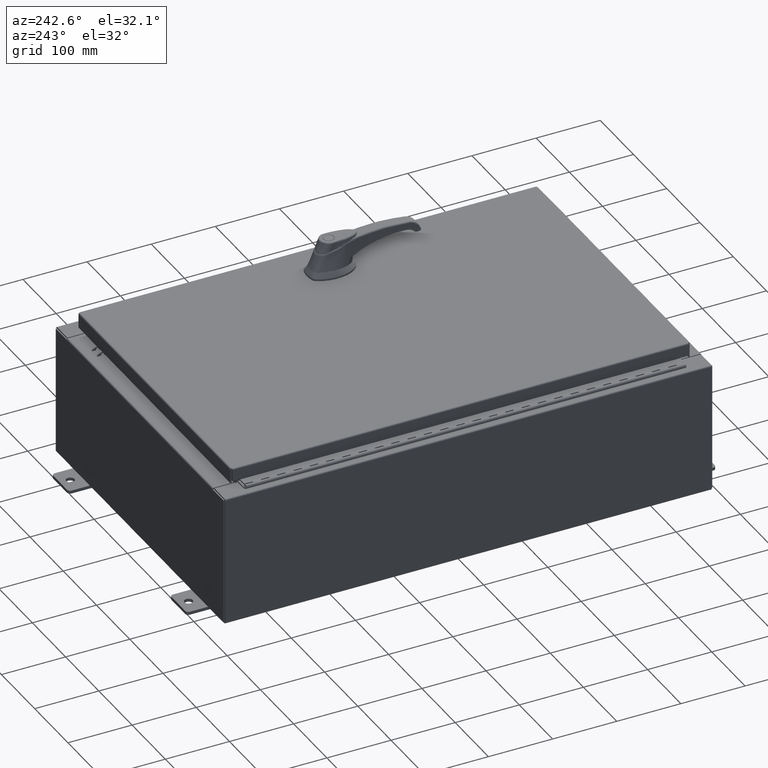
[diagram: clean part render]
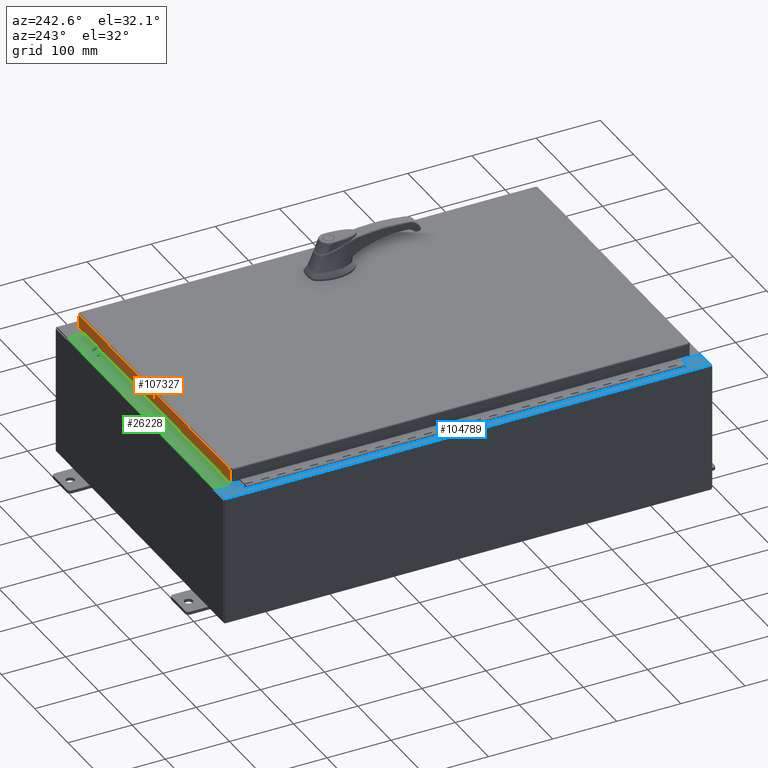
[diagram: same view with three faces highlighted in distinct colors, each labeled with its STEP entity id]
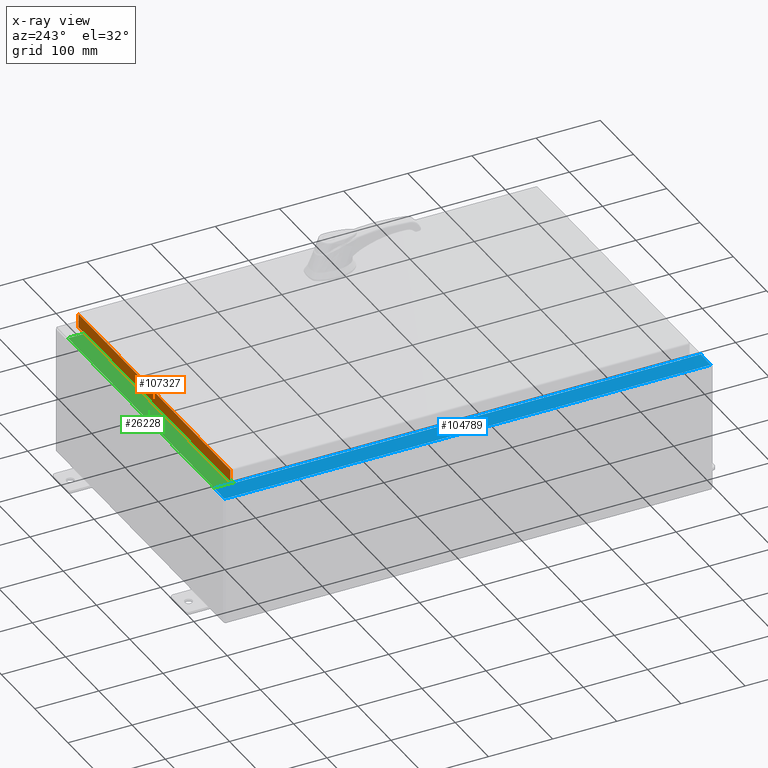
[diagram: x-ray of the same camera — body ghosted, the three highlighted faces saturated]
A machine part, auxiliary view with three faces highlighted in distinct colors.
The next image is the same camera in x-ray (body ghosted, the three faces saturated) — at least one of them is partly hidden behind the body in this view.
Their STEP definitions:

[orange] entity #107327 — the highlighted planar face has unit normal (0, -1, -0).
#2732 = ORIENTED_EDGE ( 'NONE', *, *, #77129, .F. ) ;
#7424 = EDGE_CURVE ( 'NONE', #31499, #17379, #8457, .T. ) ;
#8457 = LINE ( 'NONE', #72655, #101928 ) ;
#10259 = VECTOR ( 'NONE', #30236, 39.37007874015748100 ) ;
#16980 = EDGE_LOOP ( 'NONE', ( #93947, #24734, #2732, #106824 ) ) ;
#17379 = VERTEX_POINT ( 'NONE', #41022 ) ;
#20155 = CARTESIAN_POINT ( 'NONE',  ( -9.077999999999997600, 14.09400000000000100, -0.9377000000000020900 ) ) ;
#24638 = PLANE ( 'NONE',  #82992 ) ;
#24734 = ORIENTED_EDGE ( 'NONE', *, *, #64616, .T. ) ;
#30236 = DIRECTION ( 'NONE',  ( 0.0000000000000000000, 2.532419924601859400E-015, -1.000000000000000000 ) ) ;
#31499 = VERTEX_POINT ( 'NONE', #110300 ) ;
#33115 = LINE ( 'NONE', #57710, #108078 ) ;
#33722 = DIRECTION ( 'NONE',  ( 3.238851259428368500E-031, -1.000000000000000000, -2.532419924601859400E-015 ) ) ;
#34686 = FACE_OUTER_BOUND ( 'NONE', #16980, .T. ) ;
#41022 = CARTESIAN_POINT ( 'NONE',  ( -8.989157864376267100, 14.09399999999999900, -0.08770000000000008300 ) ) ;
#54957 = CARTESIAN_POINT ( 'NONE',  ( 8.989157864376268800, 14.09400000000000100, -0.9376999999999997600 ) ) ;
#57710 = CARTESIAN_POINT ( 'NONE',  ( -8.989157864376267100, 14.09399999999999900, -0.07469999999999980800 ) ) ;
#58412 = LINE ( 'NONE', #84411, #10259 ) ;
#63238 = EDGE_CURVE ( 'NONE', #17379, #89874, #33115, .T. ) ;
#64616 = EDGE_CURVE ( 'NONE', #31499, #94293, #58412, .T. ) ;
#66811 = DIRECTION ( 'NONE',  ( -0.0000000000000000000, 2.532419924601859400E-015, -1.000000000000000000 ) ) ;
#72655 = CARTESIAN_POINT ( 'NONE',  ( -9.077999999999997600, 14.09399999999999900, -0.08770000000000008300 ) ) ;
#77129 = EDGE_CURVE ( 'NONE', #89874, #94293, #112514, .T. ) ;
#82992 = AXIS2_PLACEMENT_3D ( 'NONE', #105672, #33722, #96972 ) ;
#83431 = DIRECTION ( 'NONE',  ( 1.000000000000000000, -4.379057701015054300E-047, 1.278955053213606700E-016 ) ) ;
#84411 = CARTESIAN_POINT ( 'NONE',  ( 8.989157864376268800, 14.09399999999999900, 3.595274007335018000E-014 ) ) ;
#89874 = VERTEX_POINT ( 'NONE', #114200 ) ;
#90794 = DIRECTION ( 'NONE',  ( -1.000000000000000000, -3.238851259428369400E-031, -8.109186372806501700E-046 ) ) ;
#93947 = ORIENTED_EDGE ( 'NONE', *, *, #7424, .F. ) ;
#94293 = VERTEX_POINT ( 'NONE', #54957 ) ;
#96972 = DIRECTION ( 'NONE',  ( 0.0000000000000000000, 2.532419924601859400E-015, -1.000000000000000000 ) ) ;
#101928 = VECTOR ( 'NONE', #90794, 39.37007874015748100 ) ;
#105672 = CARTESIAN_POINT ( 'NONE',  ( -4.564836965038341900E-030, 14.09399999999999900, 3.595274007335018000E-014 ) ) ;
#106824 = ORIENTED_EDGE ( 'NONE', *, *, #63238, .F. ) ;
#107327 = ADVANCED_FACE ( 'NONE', ( #34686 ), #24638, .F. ) ;
#108078 = VECTOR ( 'NONE', #66811, 39.37007874015748100 ) ;
#110300 = CARTESIAN_POINT ( 'NONE',  ( 8.989157864376268800, 14.09399999999999900, -0.08770000000000008300 ) ) ;
#112514 = LINE ( 'NONE', #20155, #115344 ) ;
#114200 = CARTESIAN_POINT ( 'NONE',  ( -8.989157864376267100, 14.09400000000000100, -0.9377000000000020900 ) ) ;
#115344 = VECTOR ( 'NONE', #83431, 39.37007874015748100 ) ;

[blue] entity #104789 — the highlighted planar face has unit normal (0, 0, -1).
#1156 = LINE ( 'NONE', #43386, #43651 ) ;
#1472 = DIRECTION ( 'NONE',  ( -1.000000000000000000, 0.0000000000000000000, -7.132762385546378400E-015 ) ) ;
#1663 = LINE ( 'NONE', #50376, #44136 ) ;
#3653 = DIRECTION ( 'NONE',  ( 0.0000000000000000000, 1.000000000000000000, 0.0000000000000000000 ) ) ;
#3958 = DIRECTION ( 'NONE',  ( -0.0000000000000000000, -1.000000000000000000, -0.0000000000000000000 ) ) ;
#6380 = EDGE_CURVE ( 'NONE', #49600, #39972, #1156, .T. ) ;
#10534 = ORIENTED_EDGE ( 'NONE', *, *, #100668, .F. ) ;
#12300 = ORIENTED_EDGE ( 'NONE', *, *, #43856, .T. ) ;
#15331 = ORIENTED_EDGE ( 'NONE', *, *, #69017, .F. ) ;
#15619 = VERTEX_POINT ( 'NONE', #112132 ) ;
#16451 = DIRECTION ( 'NONE',  ( -0.0000000000000000000, 1.000000000000000000, -0.0000000000000000000 ) ) ;
#17339 = DIRECTION ( 'NONE',  ( -7.132762385546378400E-015, -0.0000000000000000000, 1.000000000000000000 ) ) ;
#17437 = VECTOR ( 'NONE', #52254, 39.37007874015748100 ) ;
#18443 = DIRECTION ( 'NONE',  ( 1.000000000000000000, 0.0000000000000000000, 0.0000000000000000000 ) ) ;
#18994 = VERTEX_POINT ( 'NONE', #110110 ) ;
#20015 = CARTESIAN_POINT ( 'NONE',  ( -8.712700000000030100, 13.59375000000000200, 7.925300000000008900 ) ) ;
#20472 = EDGE_CURVE ( 'NONE', #72363, #117034, #30245, .T. ) ;
#21568 = LINE ( 'NONE', #75100, #66863 ) ;
#22153 = CARTESIAN_POINT ( 'NONE',  ( -5.679009539018279500E-014, -14.92529999999999600, 7.925300000000071100 ) ) ;
#24485 = AXIS2_PLACEMENT_3D ( 'NONE', #71549, #17339, #80637 ) ;
#25315 = LINE ( 'NONE', #22153, #70586 ) ;
#27621 = EDGE_CURVE ( 'NONE', #114365, #28814, #33565, .T. ) ;
#28316 = VERTEX_POINT ( 'NONE', #84365 ) ;
#28814 = VERTEX_POINT ( 'NONE', #20015 ) ;
#30129 = EDGE_LOOP ( 'NONE', ( #15331, #37863, #12300, #98164, #93302, #41097, #98866, #93473, #51866, #53687, #112779, #10534 ) ) ;
#30245 = CIRCLE ( 'NONE', #24485, 0.01867499999999949400 ) ;
#30728 = CARTESIAN_POINT ( 'NONE',  ( -8.750050000000030100, 13.61242500000000200, 7.925300000000008900 ) ) ;
#33565 = LINE ( 'NONE', #63560, #78842 ) ;
#35531 = DIRECTION ( 'NONE',  ( -1.000000000000000000, 0.0000000000000000000, -7.132762385546378400E-015 ) ) ;
#37863 = ORIENTED_EDGE ( 'NONE', *, *, #97763, .T. ) ;
#39801 = DIRECTION ( 'NONE',  ( 1.000000000000000000, 0.0000000000000000000, 0.0000000000000000000 ) ) ;
#39972 = VERTEX_POINT ( 'NONE', #106317 ) ;
#40384 = CARTESIAN_POINT ( 'NONE',  ( -8.712700000000030100, 13.59375000000000400, 7.925300000000008900 ) ) ;
#41097 = ORIENTED_EDGE ( 'NONE', *, *, #112071, .T. ) ;
#42083 = CARTESIAN_POINT ( 'NONE',  ( -8.750050000000030100, 13.59375000000000200, 7.925300000000008900 ) ) ;
#43386 = CARTESIAN_POINT ( 'NONE',  ( -9.912300000000028500, 14.92530000000000500, 7.925300000000000000 ) ) ;
#43651 = VECTOR ( 'NONE', #16451, 39.37007874015748100 ) ;
#43856 = EDGE_CURVE ( 'NONE', #82391, #39972, #50549, .T. ) ;
#44136 = VECTOR ( 'NONE', #50759, 39.37007874015748100 ) ;
#45560 = EDGE_CURVE ( 'NONE', #49600, #18994, #25315, .T. ) ;
#45898 = CARTESIAN_POINT ( 'NONE',  ( -8.750050000000030100, 13.63110000000000200, 7.925300000000008900 ) ) ;
#47412 = CARTESIAN_POINT ( 'NONE',  ( -8.712700000000030100, -13.59374999999999500, 7.925300000000008900 ) ) ;
#49600 = VERTEX_POINT ( 'NONE', #109220 ) ;
#50376 = CARTESIAN_POINT ( 'NONE',  ( -8.699700000000028400, 13.63110000000000400, 7.925300000000008900 ) ) ;
#50549 = LINE ( 'NONE', #54073, #71778 ) ;
#50572 = FACE_OUTER_BOUND ( 'NONE', #30129, .T. ) ;
#50759 = DIRECTION ( 'NONE',  ( -1.000000000000000000, -4.340572780399910900E-014, 0.0000000000000000000 ) ) ;
#51101 = EDGE_CURVE ( 'NONE', #117034, #28316, #89602, .T. ) ;
#51866 = ORIENTED_EDGE ( 'NONE', *, *, #86264, .F. ) ;
#52254 = DIRECTION ( 'NONE',  ( 1.000000000000000000, 0.0000000000000000000, 0.0000000000000000000 ) ) ;
#53687 = ORIENTED_EDGE ( 'NONE', *, *, #69536, .F. ) ;
#54025 = AXIS2_PLACEMENT_3D ( 'NONE', #82598, #55681, #1472 ) ;
#54073 = CARTESIAN_POINT ( 'NONE',  ( -5.679009539018279500E-014, 14.92530000000000500, 7.925300000000071100 ) ) ;
#55681 = DIRECTION ( 'NONE',  ( 7.132762385546378400E-015, 0.0000000000000000000, -1.000000000000000000 ) ) ;
#56513 = DIRECTION ( 'NONE',  ( -1.000000000000000000, 0.0000000000000000000, 0.0000000000000000000 ) ) ;
#61068 = VECTOR ( 'NONE', #3958, 39.37007874015748100 ) ;
#62366 = VECTOR ( 'NONE', #56513, 39.37007874015748100 ) ;
#63560 = CARTESIAN_POINT ( 'NONE',  ( -8.750050000000030100, 13.59375000000000200, 7.925300000000008900 ) ) ;
#63562 = CARTESIAN_POINT ( 'NONE',  ( -8.750050000000030100, -13.63109999999999500, 7.925300000000008900 ) ) ;
#64485 = AXIS2_PLACEMENT_3D ( 'NONE', #30728, #93978, #39801 ) ;
#64851 = VERTEX_POINT ( 'NONE', #71662 ) ;
#66863 = VECTOR ( 'NONE', #84178, 39.37007874015748100 ) ;
#67638 = DIRECTION ( 'NONE',  ( 1.000000000000000000, -0.0000000000000000000, 7.132762385546378400E-015 ) ) ;
#69017 = EDGE_CURVE ( 'NONE', #15619, #109795, #1663, .T. ) ;
#69453 = CIRCLE ( 'NONE', #64485, 0.01867499999999949400 ) ;
#69536 = EDGE_CURVE ( 'NONE', #28814, #64851, #87957, .T. ) ;
#70586 = VECTOR ( 'NONE', #67638, 39.37007874015748100 ) ;
#71549 = CARTESIAN_POINT ( 'NONE',  ( -8.750050000000030100, -13.61242499999999500, 7.925300000000008900 ) ) ;
#71662 = CARTESIAN_POINT ( 'NONE',  ( -8.712700000000030100, -13.59374999999999500, 7.925300000000008900 ) ) ;
#71778 = VECTOR ( 'NONE', #35531, 39.37007874015748100 ) ;
#72363 = VERTEX_POINT ( 'NONE', #72938 ) ;
#72938 = CARTESIAN_POINT ( 'NONE',  ( -8.750050000000030100, -13.59374999999999500, 7.925300000000008900 ) ) ;
#75100 = CARTESIAN_POINT ( 'NONE',  ( -8.699700000000028400, 0.0000000000000000000, 7.925300000000008900 ) ) ;
#78842 = VECTOR ( 'NONE', #18443, 39.37007874015748100 ) ;
#80637 = DIRECTION ( 'NONE',  ( 1.000000000000000000, 0.0000000000000000000, 0.0000000000000000000 ) ) ;
#82391 = VERTEX_POINT ( 'NONE', #102269 ) ;
#82598 = CARTESIAN_POINT ( 'NONE',  ( -5.679009539018279500E-014, 0.0000000000000000000, 7.925300000000071100 ) ) ;
#84178 = DIRECTION ( 'NONE',  ( 0.0000000000000000000, 1.000000000000000000, 0.0000000000000000000 ) ) ;
#84365 = CARTESIAN_POINT ( 'NONE',  ( -8.699700000000028400, -13.63109999999999600, 7.925300000000008900 ) ) ;
#86264 = EDGE_CURVE ( 'NONE', #64851, #72363, #89251, .T. ) ;
#87957 = LINE ( 'NONE', #40384, #61068 ) ;
#89251 = LINE ( 'NONE', #47412, #62366 ) ;
#89573 = VECTOR ( 'NONE', #3653, 39.37007874015748100 ) ;
#89602 = LINE ( 'NONE', #115548, #17437 ) ;
#93302 = ORIENTED_EDGE ( 'NONE', *, *, #45560, .T. ) ;
#93473 = ORIENTED_EDGE ( 'NONE', *, *, #20472, .F. ) ;
#93978 = DIRECTION ( 'NONE',  ( -7.132762385546378400E-015, -0.0000000000000000000, 1.000000000000000000 ) ) ;
#97763 = EDGE_CURVE ( 'NONE', #15619, #82391, #113693, .T. ) ;
#98164 = ORIENTED_EDGE ( 'NONE', *, *, #6380, .F. ) ;
#98866 = ORIENTED_EDGE ( 'NONE', *, *, #51101, .F. ) ;
#100668 = EDGE_CURVE ( 'NONE', #109795, #114365, #69453, .T. ) ;
#102269 = CARTESIAN_POINT ( 'NONE',  ( -8.699700000000028400, 14.92530000000000500, 7.925300000000008900 ) ) ;
#102949 = CARTESIAN_POINT ( 'NONE',  ( -8.699700000000028400, 0.0000000000000000000, 7.925300000000008900 ) ) ;
#104789 = ADVANCED_FACE ( 'NONE', ( #50572 ), #109885, .F. ) ;
#106317 = CARTESIAN_POINT ( 'NONE',  ( -9.912300000000028500, 14.92530000000000500, 7.925300000000000000 ) ) ;
#109220 = CARTESIAN_POINT ( 'NONE',  ( -9.912300000000028500, -14.92529999999999600, 7.925300000000000000 ) ) ;
#109795 = VERTEX_POINT ( 'NONE', #45898 ) ;
#109885 = PLANE ( 'NONE',  #54025 ) ;
#110110 = CARTESIAN_POINT ( 'NONE',  ( -8.699700000000028400, -14.92529999999999600, 7.925300000000008900 ) ) ;
#112071 = EDGE_CURVE ( 'NONE', #18994, #28316, #21568, .T. ) ;
#112132 = CARTESIAN_POINT ( 'NONE',  ( -8.699700000000028400, 13.63110000000000400, 7.925300000000008900 ) ) ;
#112779 = ORIENTED_EDGE ( 'NONE', *, *, #27621, .F. ) ;
#113693 = LINE ( 'NONE', #102949, #89573 ) ;
#114365 = VERTEX_POINT ( 'NONE', #42083 ) ;
#115548 = CARTESIAN_POINT ( 'NONE',  ( -8.750050000000030100, -13.63109999999999500, 7.925300000000008900 ) ) ;
#117034 = VERTEX_POINT ( 'NONE', #63562 ) ;

[green] entity #26228 — the highlighted planar face has unit normal (0, 0, 1).
#4267 = VECTOR ( 'NONE', #45257, 39.37007874015748100 ) ;
#7087 = LINE ( 'NONE', #108539, #4267 ) ;
#10930 = ORIENTED_EDGE ( 'NONE', *, *, #52533, .F. ) ;
#16043 = CARTESIAN_POINT ( 'NONE',  ( -8.637200000000000000, -1.287299999999999200, 4.000000000000004400 ) ) ;
#22218 = ORIENTED_EDGE ( 'NONE', *, *, #89231, .T. ) ;
#22437 = CARTESIAN_POINT ( 'NONE',  ( 0.0000000000000000000, 1.425992975200418500E-014, 4.000000000000000000 ) ) ;
#24781 = CARTESIAN_POINT ( 'NONE',  ( -8.637200000000000000, -0.08770000000000000000, 4.000000000000000000 ) ) ;
#26228 = ADVANCED_FACE ( 'NONE', ( #61994 ), #40235, .T. ) ;
#40235 = PLANE ( 'NONE',  #116388 ) ;
#45257 = DIRECTION ( 'NONE',  ( -0.0000000000000000000, 1.000000000000000000, -3.566381192773190000E-015 ) ) ;
#45636 = CARTESIAN_POINT ( 'NONE',  ( 8.637200000000000000, -1.287299999999999900, 4.000000000000003600 ) ) ;
#45957 = CARTESIAN_POINT ( 'NONE',  ( 8.637200000000000000, -1.287299999999999900, 4.000000000000004400 ) ) ;
#49698 = DIRECTION ( 'NONE',  ( 0.0000000000000000000, -1.000000000000000000, 3.566381192773190000E-015 ) ) ;
#52533 = EDGE_CURVE ( 'NONE', #66907, #53803, #105217, .T. ) ;
#53803 = VERTEX_POINT ( 'NONE', #16043 ) ;
#54068 = VERTEX_POINT ( 'NONE', #58678 ) ;
#57767 = VECTOR ( 'NONE', #94030, 39.37007874015748100 ) ;
#58678 = CARTESIAN_POINT ( 'NONE',  ( 8.637200000000000000, -0.08769999999999965300, 4.000000000000000000 ) ) ;
#61994 = FACE_OUTER_BOUND ( 'NONE', #87973, .T. ) ;
#66297 = LINE ( 'NONE', #117035, #87476 ) ;
#66776 = CARTESIAN_POINT ( 'NONE',  ( -2.773851121247567100E-018, -0.08770000000000000000, 4.000000000000000900 ) ) ;
#66907 = VERTEX_POINT ( 'NONE', #45957 ) ;
#67819 = ORIENTED_EDGE ( 'NONE', *, *, #101015, .F. ) ;
#81147 = VECTOR ( 'NONE', #82023, 39.37007874015748100 ) ;
#81472 = ORIENTED_EDGE ( 'NONE', *, *, #116585, .F. ) ;
#81775 = LINE ( 'NONE', #66776, #57767 ) ;
#82023 = DIRECTION ( 'NONE',  ( -1.000000000000000000, 0.0000000000000000000, 0.0000000000000000000 ) ) ;
#87476 = VECTOR ( 'NONE', #115509, 39.37007874015748100 ) ;
#87973 = EDGE_LOOP ( 'NONE', ( #67819, #10930, #81472, #22218 ) ) ;
#89231 = EDGE_CURVE ( 'NONE', #54068, #111832, #81775, .T. ) ;
#94030 = DIRECTION ( 'NONE',  ( -1.000000000000000000, 3.162886113166609200E-017, -1.128005754888089100E-031 ) ) ;
#101015 = EDGE_CURVE ( 'NONE', #53803, #111832, #7087, .T. ) ;
#103888 = DIRECTION ( 'NONE',  ( 0.0000000000000000000, 3.566381192773190000E-015, 1.000000000000000000 ) ) ;
#105217 = LINE ( 'NONE', #45636, #81147 ) ;
#108539 = CARTESIAN_POINT ( 'NONE',  ( -8.637200000000000000, -0.07469999999999973900, 4.000000000000000000 ) ) ;
#111832 = VERTEX_POINT ( 'NONE', #24781 ) ;
#115509 = DIRECTION ( 'NONE',  ( -0.0000000000000000000, -1.000000000000000000, 3.566381192773190000E-015 ) ) ;
#116388 = AXIS2_PLACEMENT_3D ( 'NONE', #22437, #103888, #49698 ) ;
#116585 = EDGE_CURVE ( 'NONE', #54068, #66907, #66297, .T. ) ;
#117035 = CARTESIAN_POINT ( 'NONE',  ( 8.637200000000000000, -1.300299999999999800, 4.000000000000004400 ) ) ;